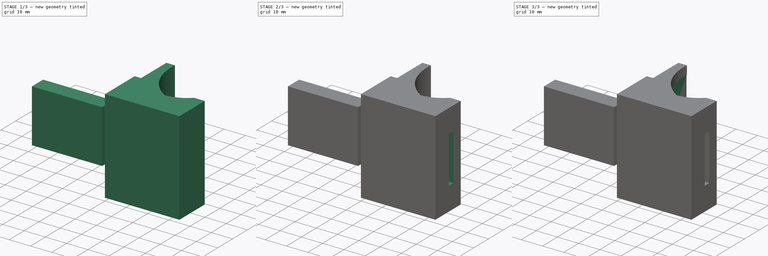
[diagram: build sequence overview — one tinted view per stage of 3, left to right]
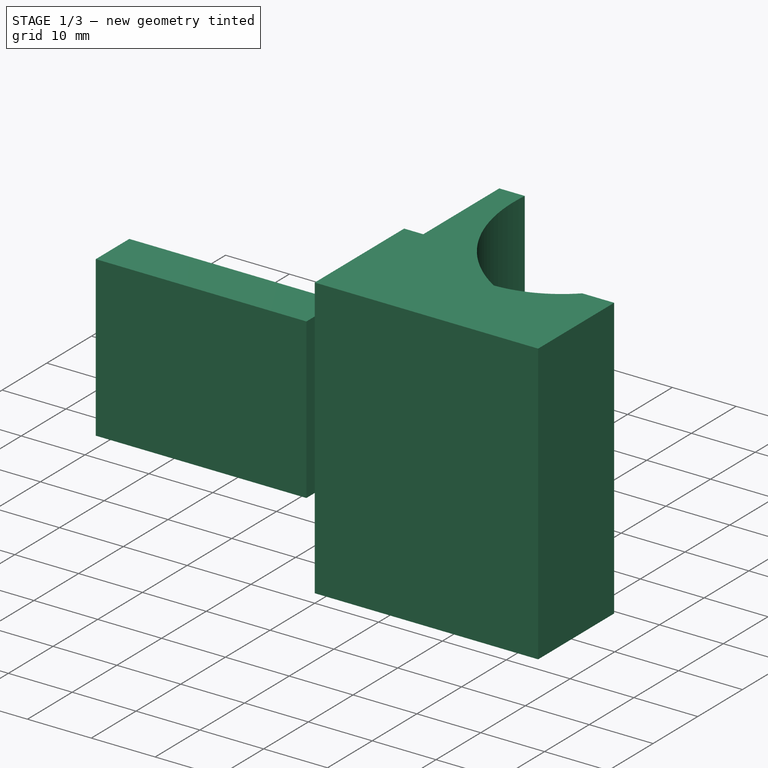
[diagram: stage 1 of 3 — iso view after this stage's code; geometry added in this stage tinted green]
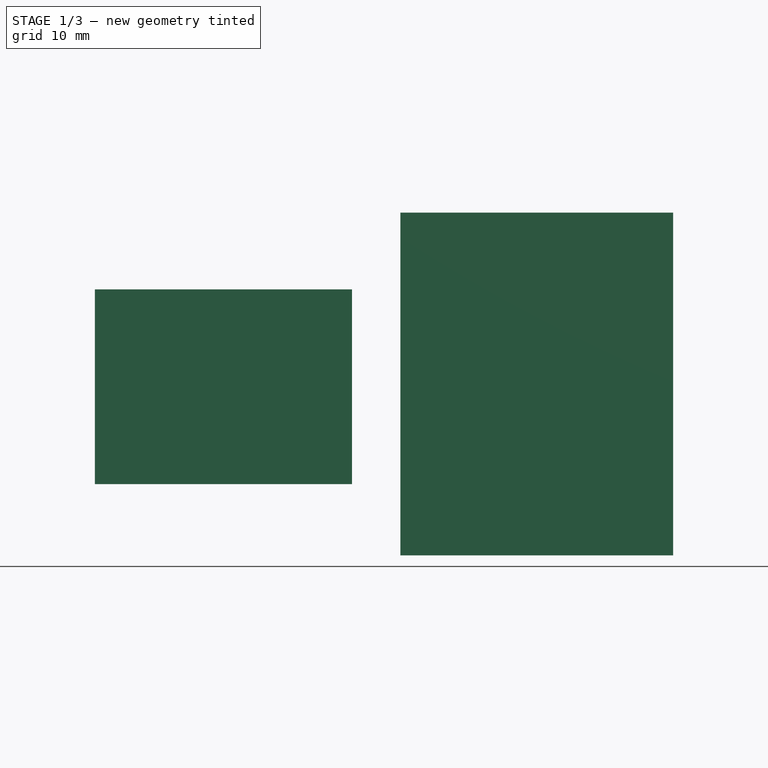
[diagram: stage 1 of 3 — front view after this stage's code; geometry added in this stage tinted green]
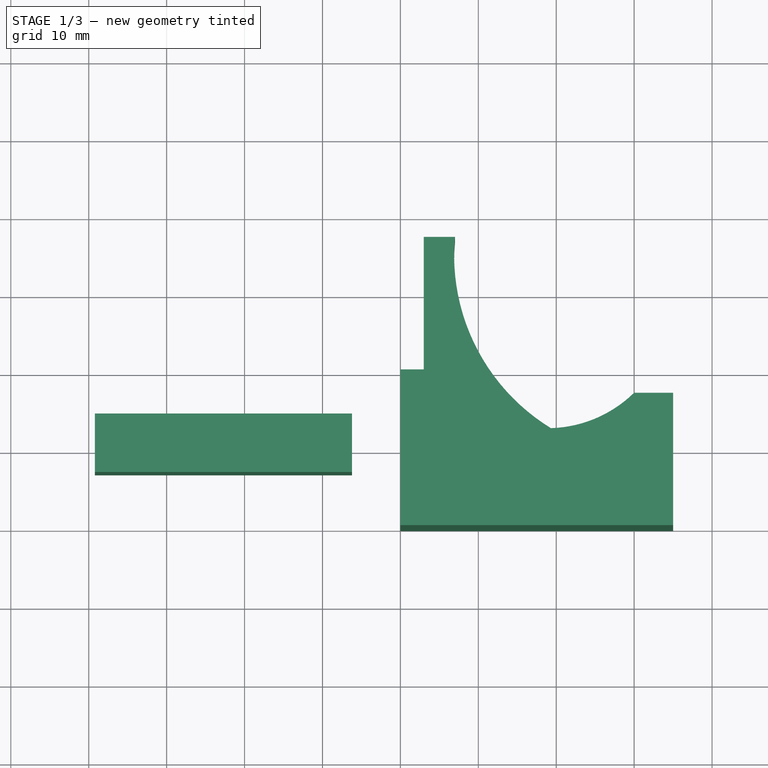
[diagram: stage 1 of 3 — top view after this stage's code; geometry added in this stage tinted green]
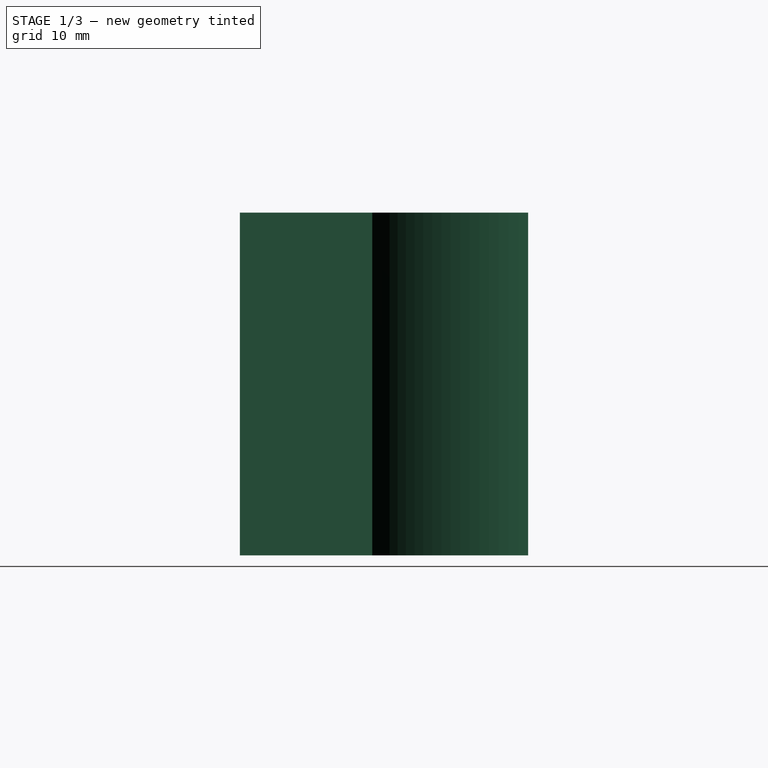
[diagram: stage 1 of 3 — right view after this stage's code; geometry added in this stage tinted green]
FCSTD DOCUMENT  (FreeCAD 0.18R16110 (Git))
Label: sdCard
License: All rights reserved
LicenseURL: http://en.wikipedia.org/wiki/All_rights_reserved
objects: Sketcher::SketchObject×5, PartDesign::Pocket×3, PartDesign::Pad×1, PartDesign::ShapeBinder×1, PartDesign::Hole×1, PartDesign::Body×1, Part::Box×1
note: 18 computed .brp shape members not serialized (recipe doc carries the construction recipe); baked Part::Feature solids carry a one-line shape summary decoded from their .brp

FEATURE [Sketcher::SketchObject] Sketch
  MapMode = 5
  Support = -> [XY_Plane]
  sketch-geometry (9):
    g0: LineSegment StartX=0 StartY=20 StartZ=0 EndX=0 EndY=0 EndZ=0
    g1: LineSegment StartX=0 StartY=0 StartZ=0 EndX=35 EndY=0 EndZ=0
    g2: LineSegment StartX=35 StartY=0 StartZ=0 EndX=35 EndY=17 EndZ=0
    g3: LineSegment StartX=35 StartY=17 StartZ=0 EndX=30 EndY=17 EndZ=0
    g4: LineSegment StartX=7 StartY=37 StartZ=0 EndX=3 EndY=37 EndZ=0
    g5: ArcOfCircle CenterX=32.9221 CenterY=34.6395 CenterZ=0 NormalX=0 NormalY=0 NormalZ=1 AngleXU=0 Radius=26.0293 StartAngle=3.05078 EndAngle=4.16242
    g6: ArcOfCircle CenterX=18.8354 CenterY=28.3915 CenterZ=0 NormalX=0 NormalY=0 NormalZ=1 AngleXU=0 Radius=15.9503 StartAngle=4.74261 EndAngle=5.48773
    g7: LineSegment StartX=0 StartY=20 StartZ=0 EndX=3 EndY=20 EndZ=0
    g8: LineSegment StartX=3 StartY=20 StartZ=0 EndX=3 EndY=37 EndZ=0
  constraints (24):
    c: Vertical(g0)
    c: Coincident(g0,g1)
    c: Horizontal(g1)
    c: Coincident(g1,g2)
    c: Vertical(g2)
    c: Coincident(g2,g3)
    c: Horizontal(g4)
    c: Horizontal(g3)
    c: DistanceX(g1,g1) = 35
    c: DistanceX(g3,g3) = 5
    c: Coincident(g5,g4)
    c: DistanceY(g2,g2) = 17
    c: Coincident(g0,g-1)
    c: Coincident(g6,g3)
    c: Horizontal(g7)
    c: Coincident(g7,g8)
    c: Vertical(g8)
    c: Coincident(g0,g7)
    c: Coincident(g4,g8)
    c: DistanceX(g7,g7) = 3
    c: DistanceY(g0,g0) = 20
    c: DistanceX(g4,g4) = 4
    c: DistanceY(g0,g4) = 37
    c: Coincident(g5,g6)
FEATURE [PartDesign::Pad] Pad
  Length = 44
  Length2 = 100
  Profile = -> Sketch
  Type = 0
FEATURE [PartDesign::Body] Body
  Group = -> [Sketch,Pad,CopyCut,Sketch002,Pocket,Sketch003,Pocket001,Pocket002,Sketch004,Hole]
  Origin = -> Origin
  Tip = -> Hole
FEATURE [Part::Box] Box001  label="Cube001"
  AttacherType = Attacher::AttachEngine3D
  Height = 25
  Length = 33
  Placement = pos=(-39.2104,7,9.15158) rot=(0,0,1;0rad)
  Width = 7.5
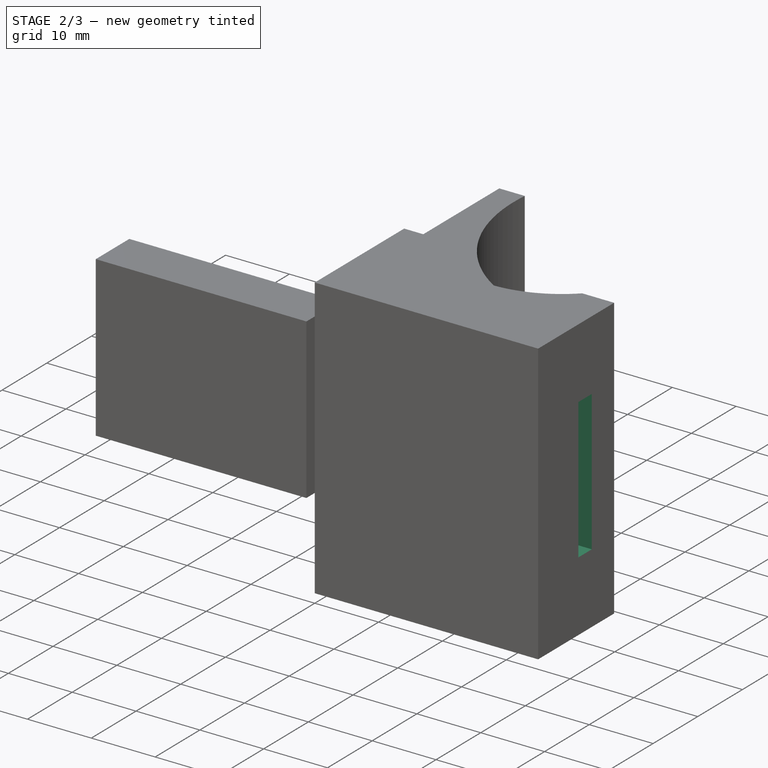
[diagram: stage 2 of 3 — iso view after this stage's code; geometry added in this stage tinted green]
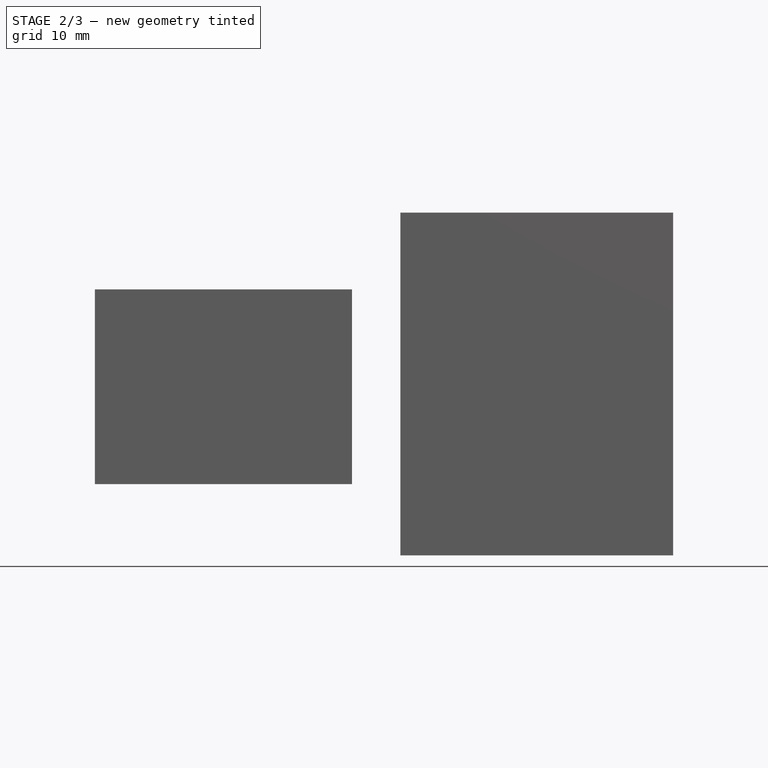
[diagram: stage 2 of 3 — front view after this stage's code; geometry added in this stage tinted green]
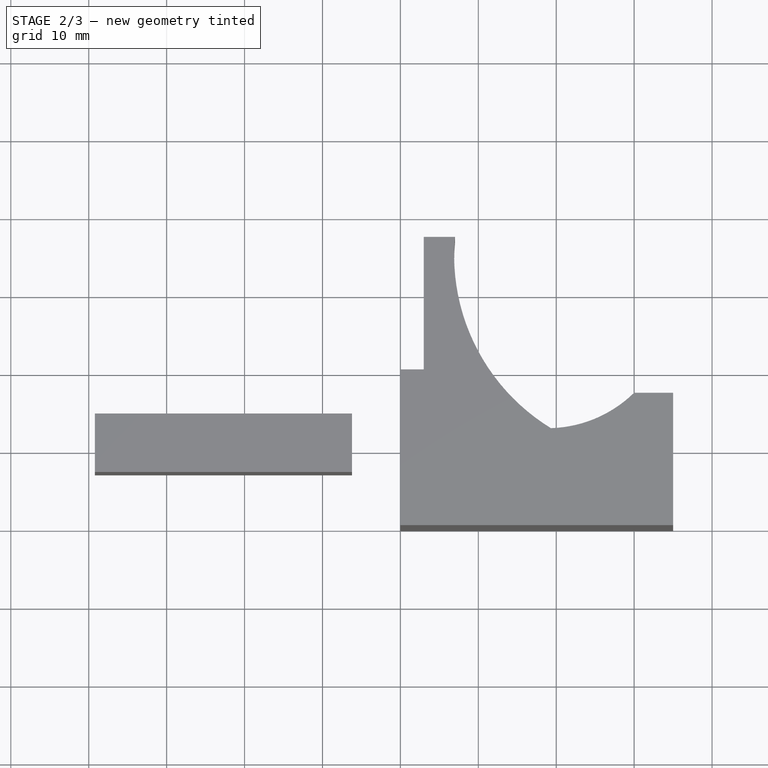
[diagram: stage 2 of 3 — top view after this stage's code; geometry added in this stage tinted green]
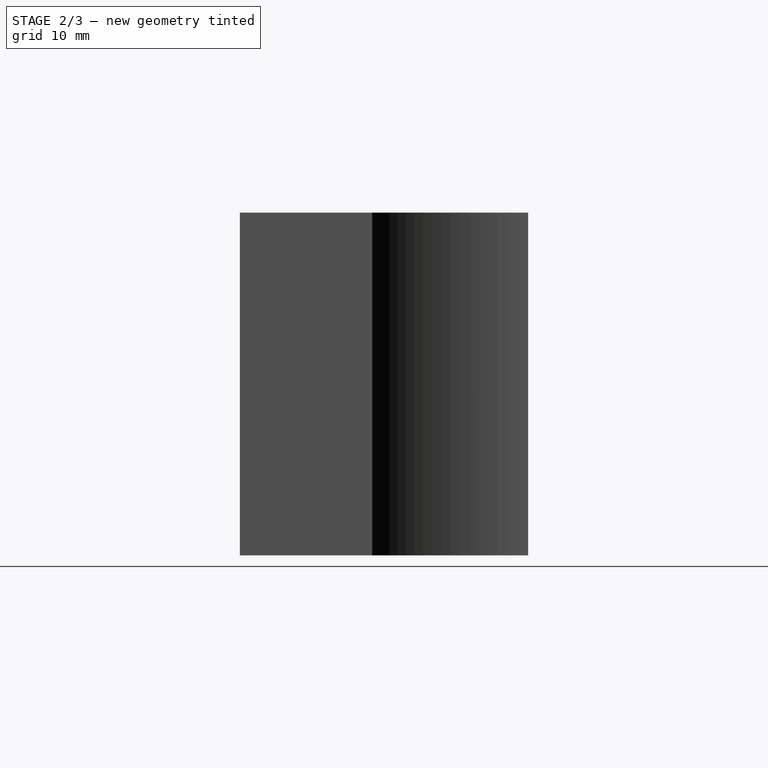
[diagram: stage 2 of 3 — right view after this stage's code; geometry added in this stage tinted green]
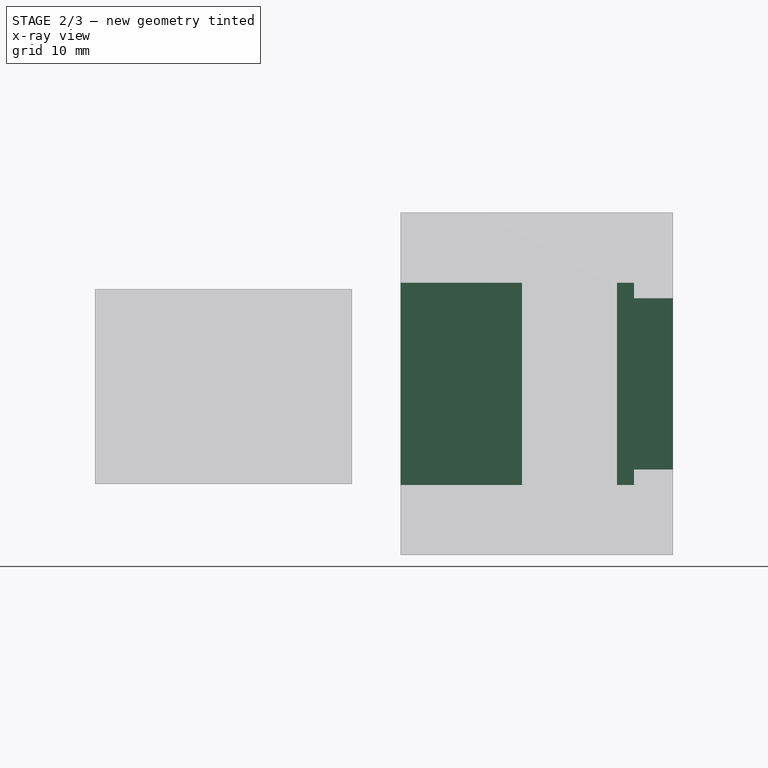
[diagram: stage 2 of 3 — x-ray composite at the front view; earlier geometry ghosted, this stage's added geometry solid]
FEATURE [PartDesign::ShapeBinder] CopyCut
  TraceSupport = false
FEATURE [Sketcher::SketchObject] Sketch002
  ExternalGeometry = -> [Sketch]
  MapMode = 5
  Placement = pos=(0,0,0) rot=(0.57735,-0.57735,-0.57735;2.0944rad)
  Support = -> [CopyCut]
  sketch-geometry (4):
    g0: LineSegment StartX=-15.2 StartY=35 StartZ=0 EndX=-7 EndY=35 EndZ=0
    g1: LineSegment StartX=-7 StartY=35 StartZ=0 EndX=-7 EndY=9 EndZ=0
    g2: LineSegment StartX=-7 StartY=9 StartZ=0 EndX=-15.2 EndY=9 EndZ=0
    g3: LineSegment StartX=-15.2 StartY=9 StartZ=0 EndX=-15.2 EndY=35 EndZ=0
  constraints (12):
    c: Coincident(g0,g1)
    c: Coincident(g1,g2)
    c: Coincident(g2,g3)
    c: Coincident(g3,g0)
    c: Horizontal(g2)
    c: Vertical(g1)
    c: Vertical(g3)
    c: DistanceY(g3,g3) = 26
    c: Horizontal(g0)
    c: DistanceX(g0,g0) = 8.2
    c: DistanceY(g-1,g1) = 9
    c: DistanceX(g1,g-1) = 7
FEATURE [PartDesign::Pocket] Pocket
  BaseFeature = -> Pad
  Length = 30
  Length2 = 105
  Profile = -> Sketch002
  Type = 0
FEATURE [Sketcher::SketchObject] Sketch003
  ExternalGeometry = -> [Sketch]
  MapMode = 5
  Placement = pos=(35,0,0) rot=(0.57735,0.57735,0.57735;2.0944rad)
  Support = -> [Pocket]
  sketch-geometry (4):
    g0: LineSegment StartX=9 StartY=33 StartZ=0 EndX=12 EndY=33 EndZ=0
    g1: LineSegment StartX=12 StartY=33 StartZ=0 EndX=12 EndY=11 EndZ=0
    g2: LineSegment StartX=12 StartY=11 StartZ=0 EndX=9 EndY=11 EndZ=0
    g3: LineSegment StartX=9 StartY=11 StartZ=0 EndX=9 EndY=33 EndZ=0
  constraints (12):
    c: Coincident(g0,g1)
    c: Coincident(g1,g2)
    c: Coincident(g2,g3)
    c: Coincident(g3,g0)
    c: Horizontal(g0)
    c: Horizontal(g2)
    c: Vertical(g1)
    c: Vertical(g3)
    c: DistanceY(g1,g1) = 22
    c: DistanceX(g2,g2) = 3
    c: DistanceX(g-1,g2) = 9
    c: DistanceY(g-3,g1) = 11
FEATURE [PartDesign::Pocket] Pocket001
  BaseFeature = -> Pocket
  Length = 15
  Length2 = 100
  Profile = -> Sketch003
  Type = 0
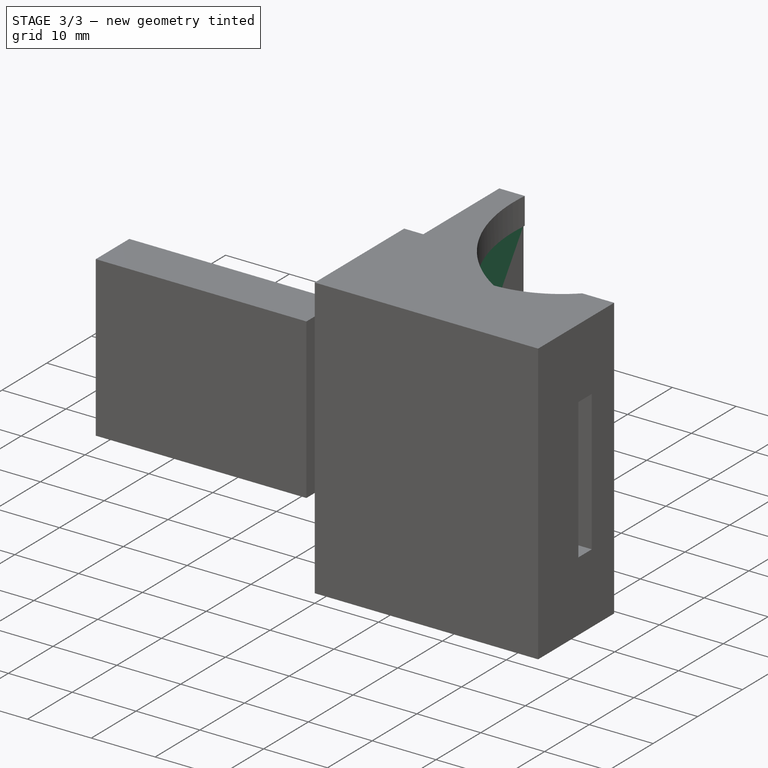
[diagram: stage 3 of 3 — iso view after this stage's code; geometry added in this stage tinted green]
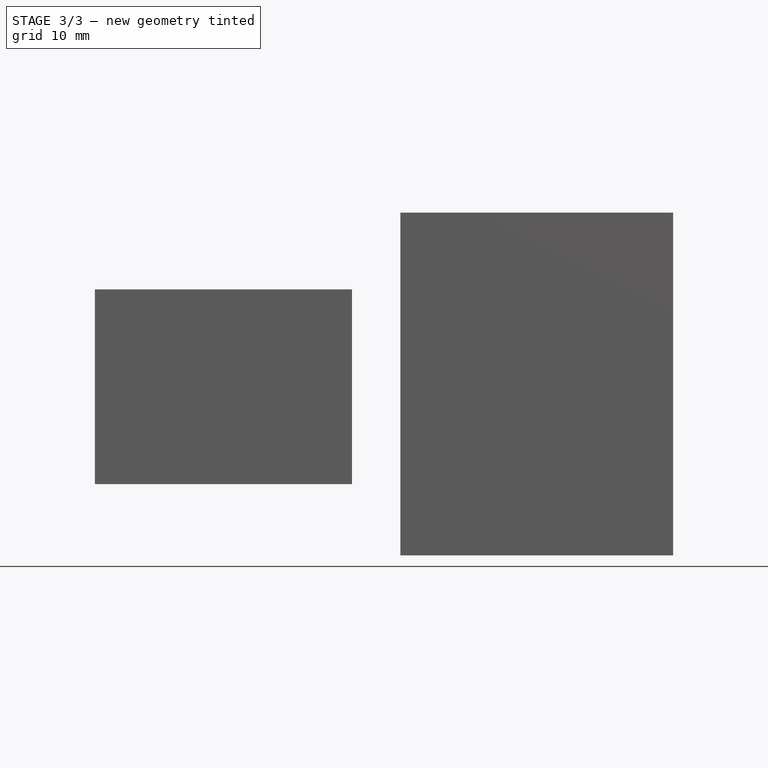
[diagram: stage 3 of 3 — front view after this stage's code; geometry added in this stage tinted green]
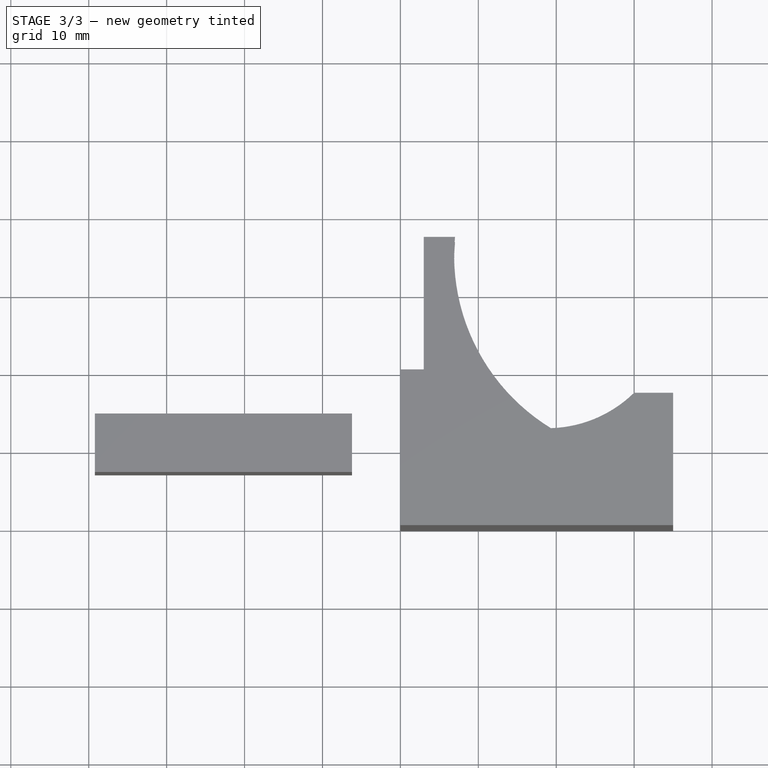
[diagram: stage 3 of 3 — top view after this stage's code; geometry added in this stage tinted green]
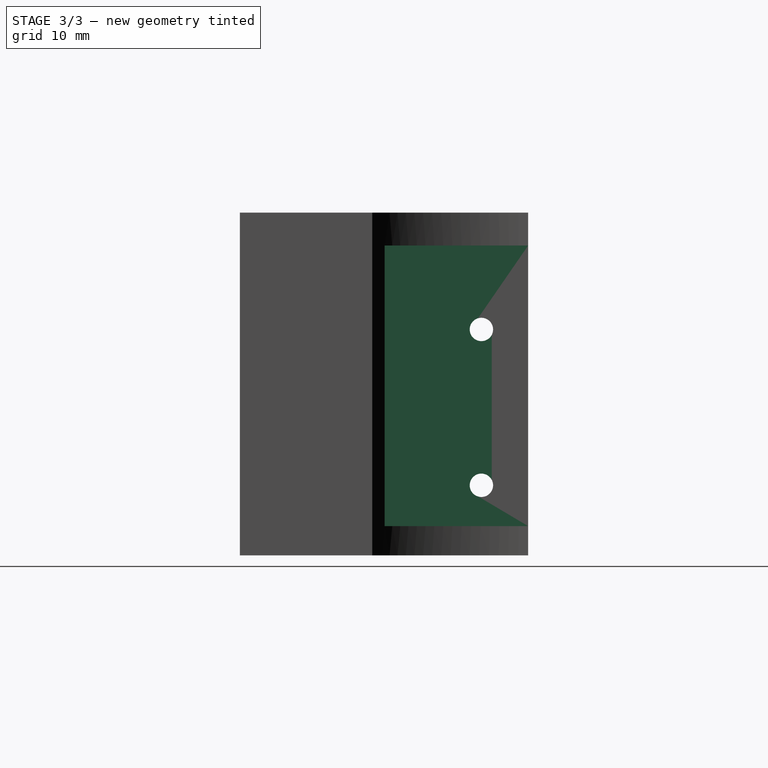
[diagram: stage 3 of 3 — right view after this stage's code; geometry added in this stage tinted green]
FEATURE [Sketcher::SketchObject] CopySketch004
  Placement = pos=(6.8,0,-3) rot=(0.57735,-0.57735,-0.57735;2.0944rad)
  sketch-geometry (4):
    g0: LineSegment StartX=-40.6456 StartY=42.7728 StartZ=0 EndX=-18.5731 EndY=42.7728 EndZ=0
    g1: LineSegment StartX=-18.5731 StartY=42.7728 StartZ=0 EndX=-18.5731 EndY=6.76432 EndZ=0
    g2: LineSegment StartX=-18.5731 StartY=6.76432 StartZ=0 EndX=-40.6456 EndY=6.76432 EndZ=0
    g3: LineSegment StartX=-40.6456 StartY=6.76432 StartZ=0 EndX=-40.6456 EndY=42.7728 EndZ=0
  constraints (8):
    c: Coincident(g0,g1)
    c: Coincident(g1,g2)
    c: Coincident(g2,g3)
    c: Coincident(g3,g0)
    c: Horizontal(g0)
    c: Horizontal(g2)
    c: Vertical(g1)
    c: Vertical(g3)
FEATURE [PartDesign::Pocket] Pocket002
  BaseFeature = -> Pocket001
  Length = 7
  Length2 = 100
  Profile = -> CopySketch004
  Type = 1
FEATURE [Sketcher::SketchObject] Sketch004
  ExternalGeometry = -> [Pad]
  MapMode = 5
  Placement = pos=(3,0,0) rot=(0.57735,-0.57735,-0.57735;2.0944rad)
  Support = -> [Pocket002]
  sketch-geometry (3):
    g0: Circle CenterX=-31 CenterY=9 CenterZ=0 NormalX=0 NormalY=0 NormalZ=1 AngleXU=0 Radius=1.5
    g1: Circle CenterX=-31 CenterY=29 CenterZ=0 NormalX=0 NormalY=0 NormalZ=1 AngleXU=0 Radius=1.5
    g2: LineSegment [constr] StartX=-31 StartY=-6 StartZ=0 EndX=-31 EndY=42.6115 EndZ=0
  constraints (8):
    c: Diameter(g0) = 3
    c: Diameter(g1) = 3
    c: Vertical(g2)
    c: PointOnObject(g0,g2)
    c: PointOnObject(g1,g2)
    c: DistanceX(g2,g-3) = 11
    c: DistanceY(g0,g1) = 20
    c: DistanceY(g-3,g0) = 9
FEATURE [PartDesign::Hole] Hole
  BaseFeature = -> Pocket002
  Depth = 25
  DepthType = 1
  Diameter = 3
  DrillPoint = 1
  DrillPointAngle = 118
  HoleCutCountersinkAngle = 90
  HoleCutDepth = 0
  HoleCutDiameter = 0
  HoleCutType = 0
  ModelActualThread = false
  Profile = -> Sketch004
  Tapered = false
  TaperedAngle = 90
  ThreadAngle = 0
  ThreadClass = 0
  ThreadCutOffInner = 0
  ThreadCutOffOuter = 0
  ThreadDirection = 0
  ThreadFit = 0
  ThreadPitch = 0
  ThreadSize = 0
  ThreadType = 0
  Threaded = false
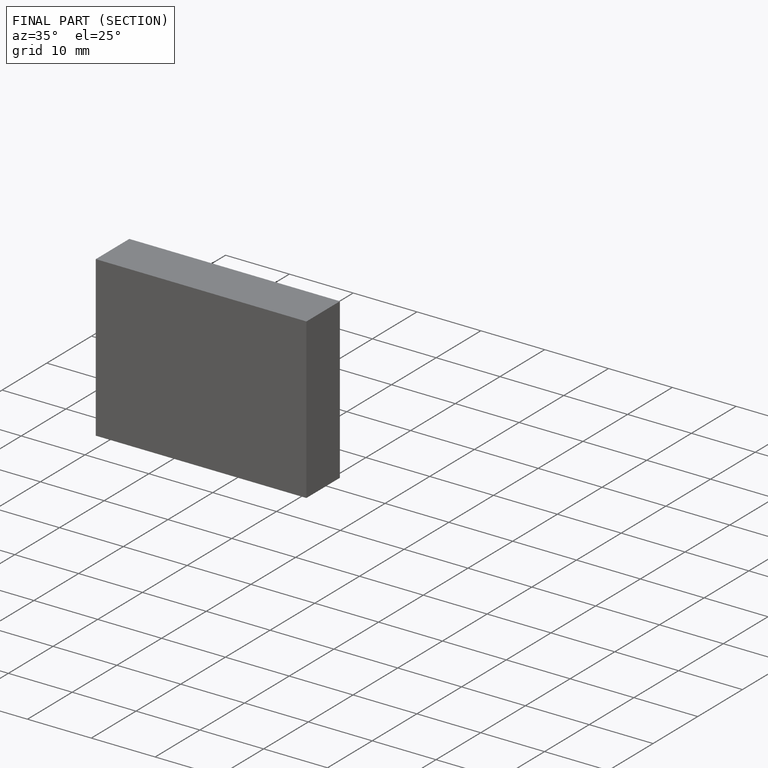
[diagram: finished part — half-section view (interior)]
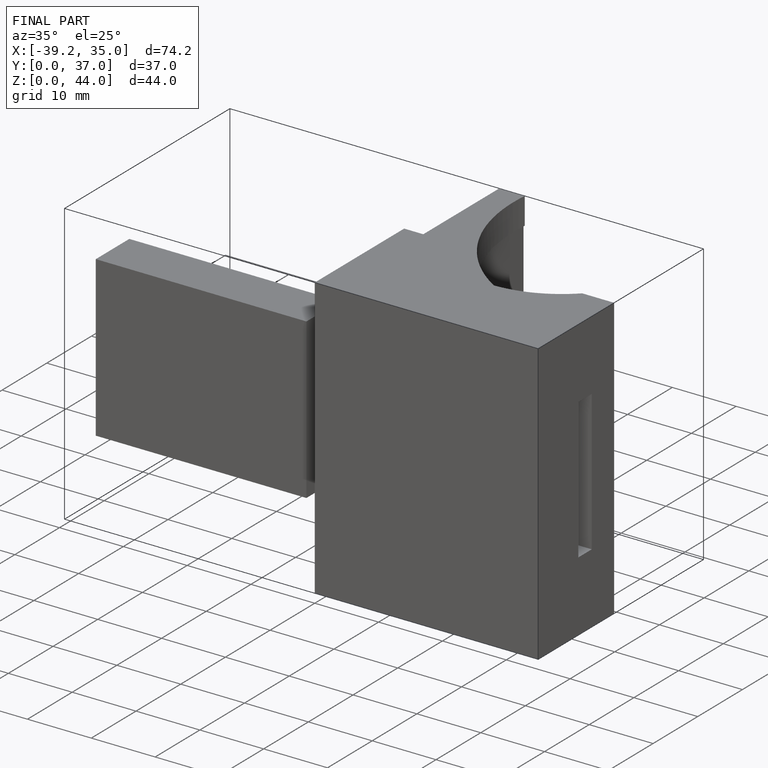
[diagram: finished part — iso view with bounding-box wireframe]
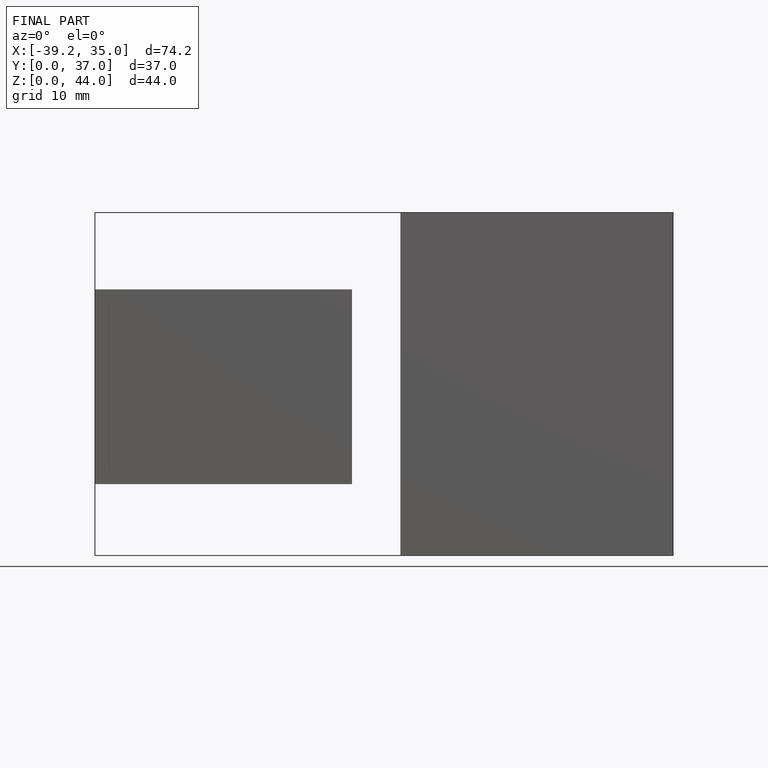
[diagram: finished part — front view with bounding-box wireframe]
